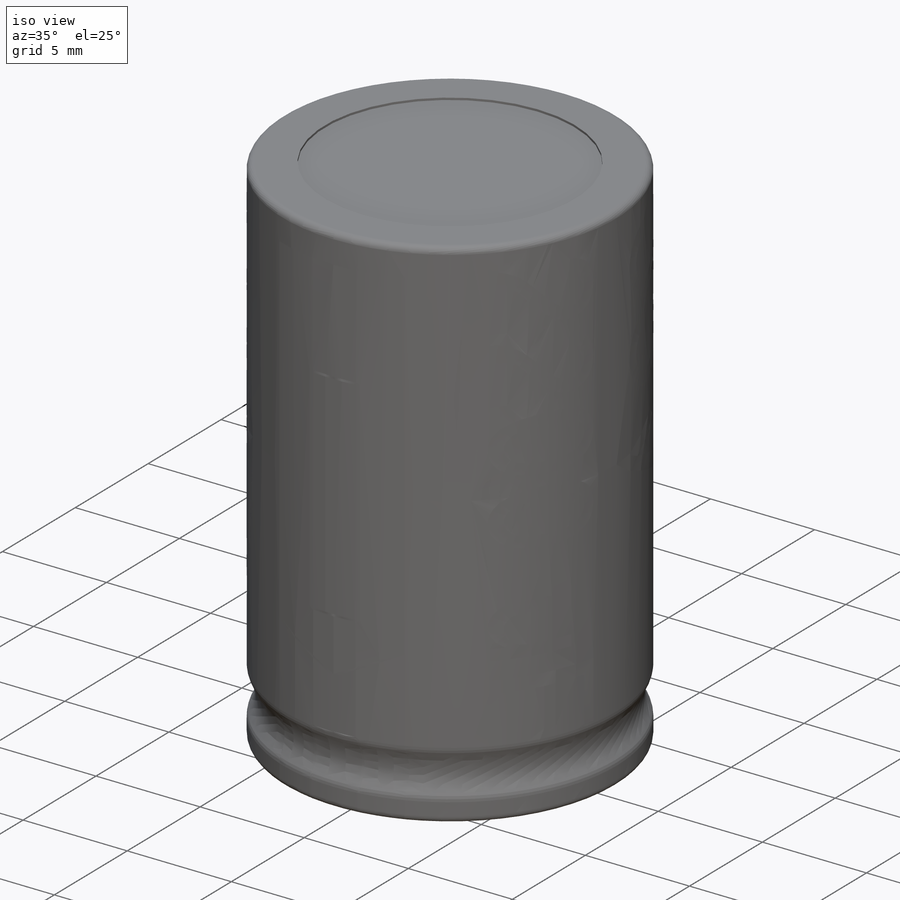
[diagram: iso view]
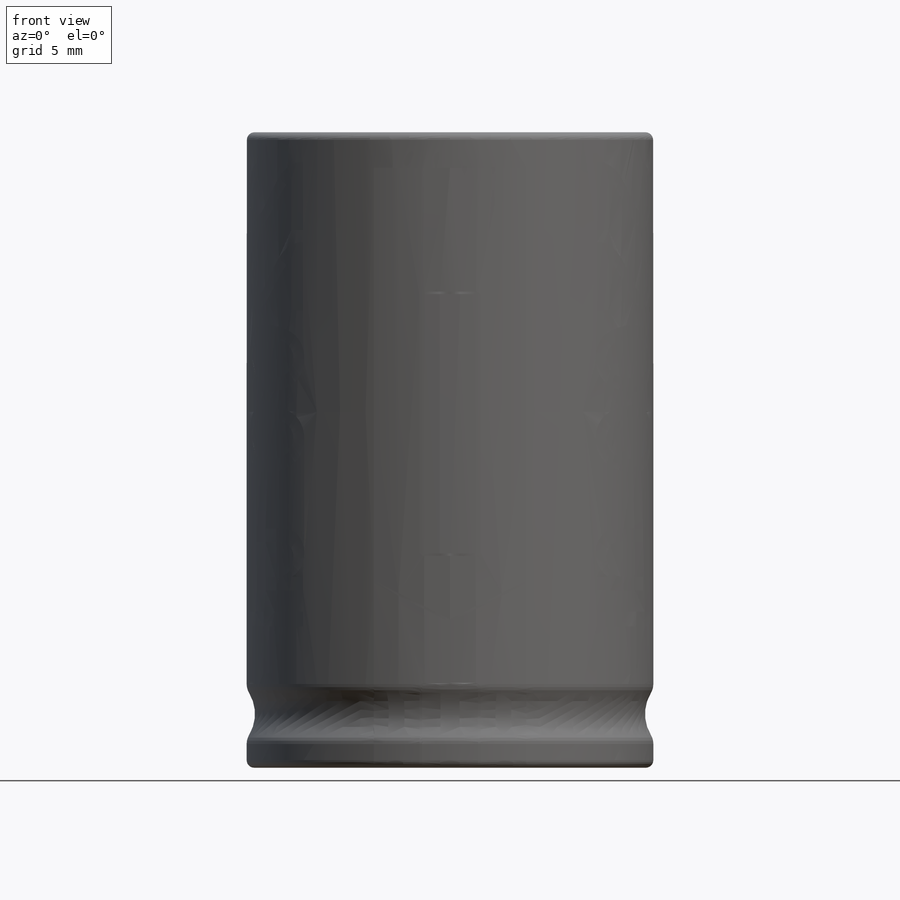
[diagram: front view]
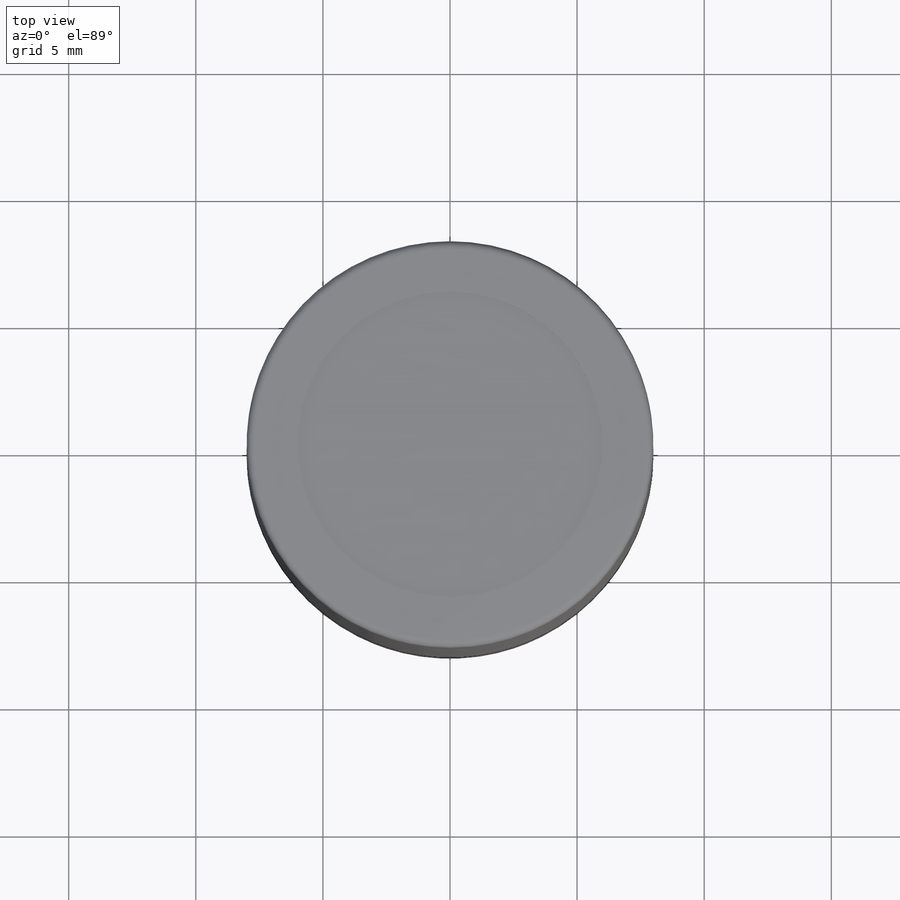
[diagram: top view]
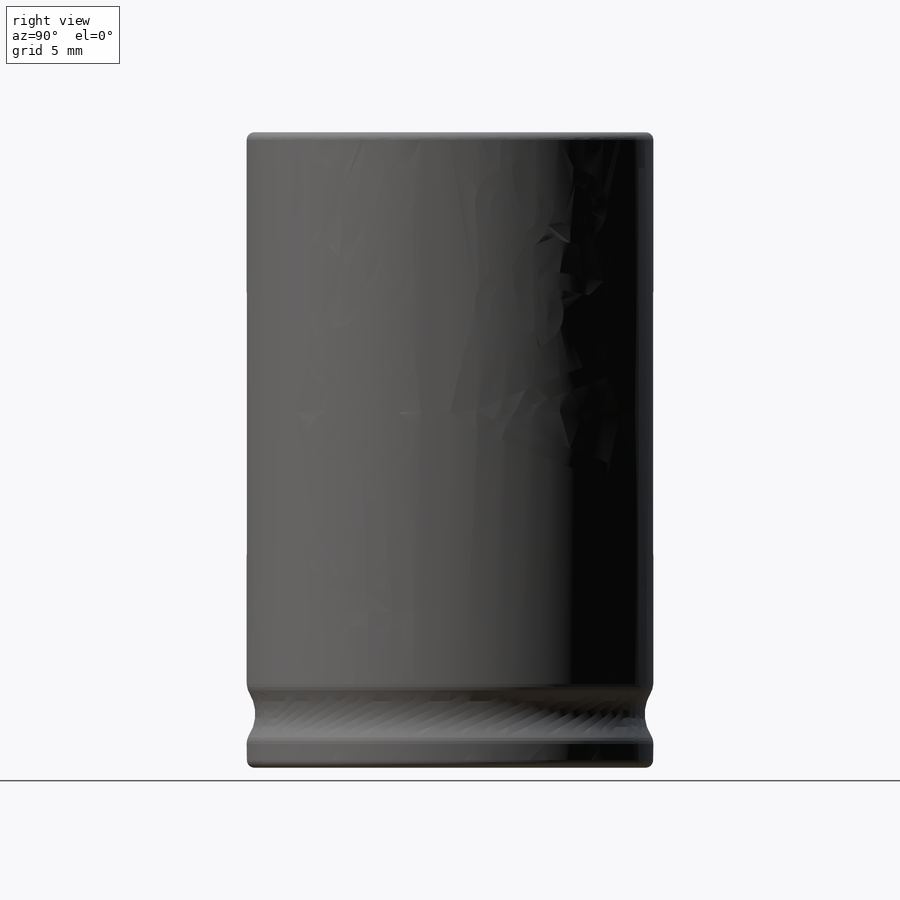
[diagram: right view]
SOLIDWORKS PART (.sldprt)
format: sldprt  version: not decoded by parser v0  size: 840,192 bytes
history: native  units: mm
features: sketch x8, fillet x4, plane x2, cut_extrude x2, mirror x2, material x1, extrude x1, cut_revolve x1, sweep x1 (+13 scaffold rows collapsed)
feature tree (35):
  scaffold x13  (default folders/planes/origin — collapsed)
  material  "Material <not specified>"
  sketch  "Sketch1"  dims[c1.D1=5.5mm c1.D2=2.75mm c2.D1=9.0mm]
  extrude  "Boss-Extrude1"  Depth=25mm
  sketch  "Sketch2"  dims[c1.D1=~5.146127mm c1.D2=3.0mm c2.D1=~71.362837deg]
  cut_revolve  "Cut-Revolve1"  Angle=360deg
  fillet  "Fillet2"  Radius=0.3mm
  fillet  "Fillet3"  Radius=0.3mm
  fillet  "Fillet4"  Radius=0.7mm
  plane  "Plane1"  Offset=10mm
  sketch  "Sketch3"  dims[D1=2.0mm]
  cut_extrude  "Cut-Extrude1"  Depth=0.1mm
  sketch  "Sketch5"  dims[c1.D1=4.0mm c2.D1=2.0mm]
  cut_extrude  "Cut-Extrude3"  Depth=0.1mm
  sketch  "Sketch6"  dims[c1.D3=0.1mm c1.D4=0.1mm c1.D1=4.0mm c1.D2=2.15mm c2.D3=1.04mm c2.D4=1.04mm c2.D5=2.15mm c2.D1=6.0mm c2.D6=2.0mm c2.D2=0.1mm c3.D5=0.1mm]
  fillet  "Fillet5"  Radius=0.1mm
  sketch  "Sketch8"  dims[c1.D1=0.6mm c1.D2=11.08mm c1.D3=2.54mm c2.D2=3.75mm]
  sketch  "Sketch10"  dims[D5=0.5mm D1=10.0mm D2=2.0mm D3=2.0mm D4=6.0mm]
  sweep  "Sweep1"
  mirror  "Mirror1"
  plane  "Plane2"  Offset=10mm
  sketch  "Sketch9"  dims[D1=20.0mm]
  mirror  "Split Line2"
decode coverage: 16 of 19 modeling features carry decoded parameters
note: ~ marks probable driven/reference dimensions
note: suppression state not decoded; provenance and decode notes live in map.json
